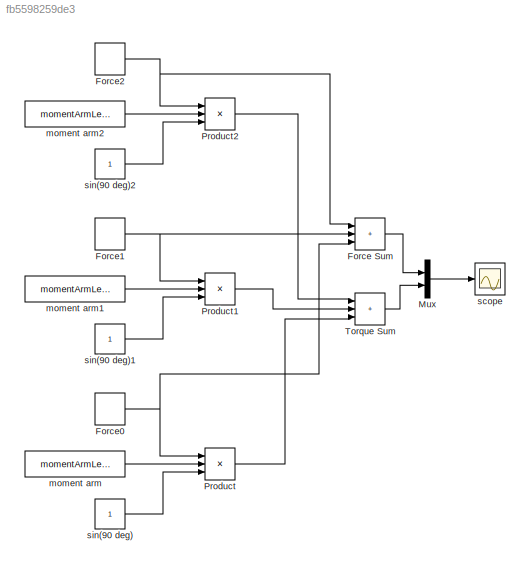
MODEL slx_fb5598259de3
KIND model
CONFIG AbsTol = auto
CONFIG EnableMultiTasking = off
CONFIG FixedStep = 1e-6
CONFIG MaxStep = auto
CONFIG MinStep = auto
CONFIG RelTol = 1e-3
CONFIG SampleTimeConstraint = Unconstrained
CONFIG SolverName = FixedStepAuto
CONFIG StartTime = 0.0
CONFIG StopTime = 3.0
BLOCK [Sum] Force Sum
  IconShape = rectangular
  Inputs = +++
  Ports = [3, 1]
BLOCK [DiscretePulseGenerator] Force0
  Amplitude = 9.8*duckWeight
  Period = forcePeriod
  PhaseDelay = phase0
  Ports = [0, 1]
  PulseType = Time based
  PulseWidth = forcePulseWidthPercent
BLOCK [DiscretePulseGenerator] Force1
  Amplitude = 9.8*duckWeight
  Period = forcePeriod
  PhaseDelay = phase1
  Ports = [0, 1]
  PulseType = Time based
  PulseWidth = forcePulseWidthPercent
BLOCK [DiscretePulseGenerator] Force2
  Amplitude = 9.8*duckWeight
  Period = forcePeriod
  PhaseDelay = phase2
  Ports = [0, 1]
  PulseType = Time based
  PulseWidth = forcePulseWidthPercent
BLOCK [Mux] Mux
  DisplayOption = bar
  Inputs = 2
  Ports = [2, 1]
BLOCK [Product] Product
  Inputs = 3
  Ports = [3, 1]
BLOCK [Product] Product1
  Inputs = 3
  Ports = [3, 1]
BLOCK [Product] Product2
  Inputs = 3
  Ports = [3, 1]
BLOCK [Sum] Torque Sum
  IconShape = rectangular
  Inputs = +++
  Ports = [3, 1]
BLOCK [Constant] moment arm
  Value = momentArmLength
BLOCK [Constant] moment arm1
  Value = momentArmLength
BLOCK [Constant] moment arm2
  Value = momentArmLength
BLOCK [Scope] scope
  Floating = off
  NumInputPorts = 1
  Ports = [1]
  ScopeSpecificationString = Simulink.scopes.TimeScopeBlockCfg('CurrentConfiguration', extmgr.ConfigurationSet(extmgr.Configuration('Core','General UI',true),extmgr.Configuration('Core','Source UI',true),extmgr.Configuration('Sources','WiredSimulink',true),extmgr.Configuration('Visuals','Time Domain',true,'SerializedDisplays',{struct('MinYLimReal','0.1321751','MaxYLimReal','0.1321776','YLabelReal','','MinYLimMag','0.1321751',...<+1404ch>
BLOCK [Constant] sin(90 deg)
BLOCK [Constant] sin(90 deg)1
BLOCK [Constant] sin(90 deg)2
LINE Force Sum:1 -> Mux:1
NET Force0:1 -> Force Sum:3, Product:1
NET Force1:1 -> Force Sum:2, Product1:1
NET Force2:1 -> Force Sum:1, Product2:1
LINE Mux:1 -> scope:1
LINE Product1:1 -> Torque Sum:2
LINE Product2:1 -> Torque Sum:1
LINE Product:1 -> Torque Sum:3
LINE Torque Sum:1 -> Mux:2
LINE moment arm1:1 -> Product1:2
LINE moment arm2:1 -> Product2:2
LINE moment arm:1 -> Product:2
LINE sin(90 deg)1:1 -> Product1:3
LINE sin(90 deg)2:1 -> Product2:3
LINE sin(90 deg):1 -> Product:3
note: NET lines group one-source signal fan-out (src -> all destinations, sorted); 1:1 wires keep LINE
